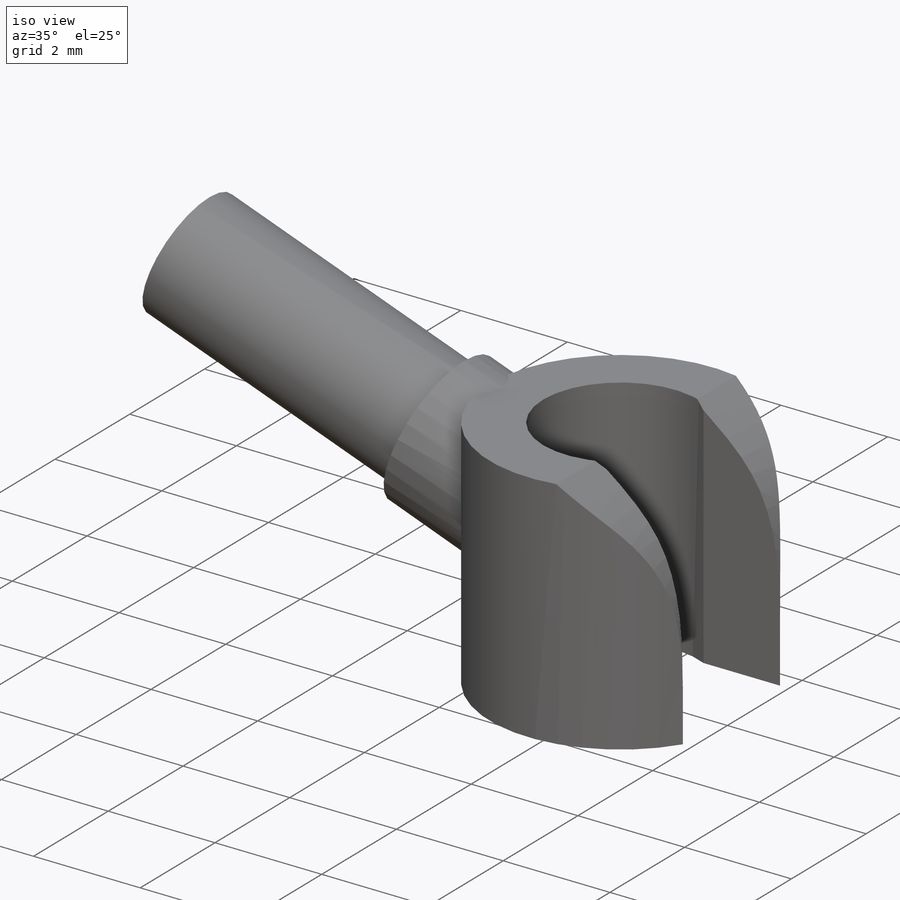
[diagram: iso view]
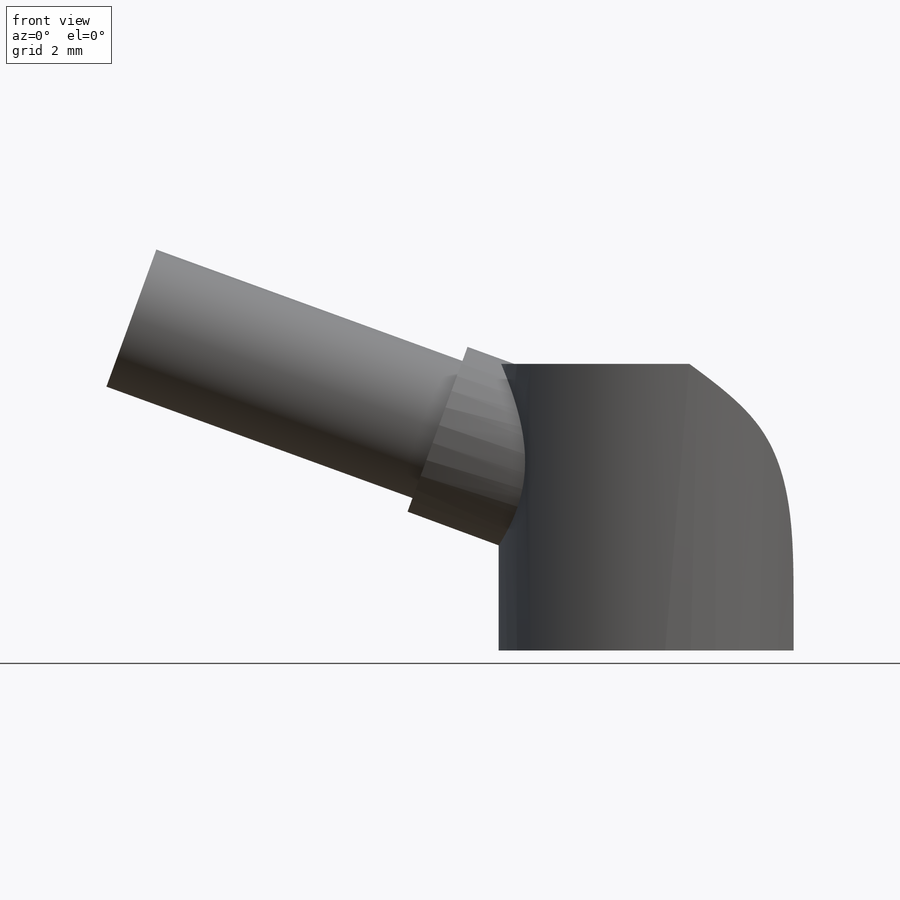
[diagram: front view]
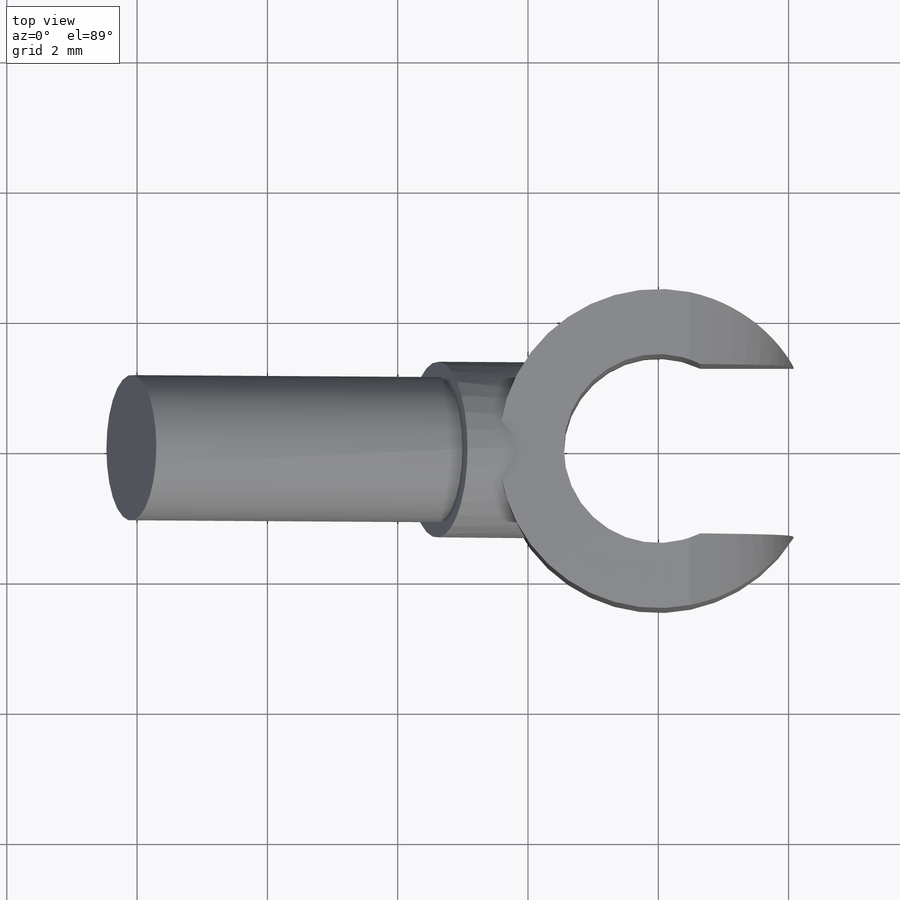
[diagram: top view]
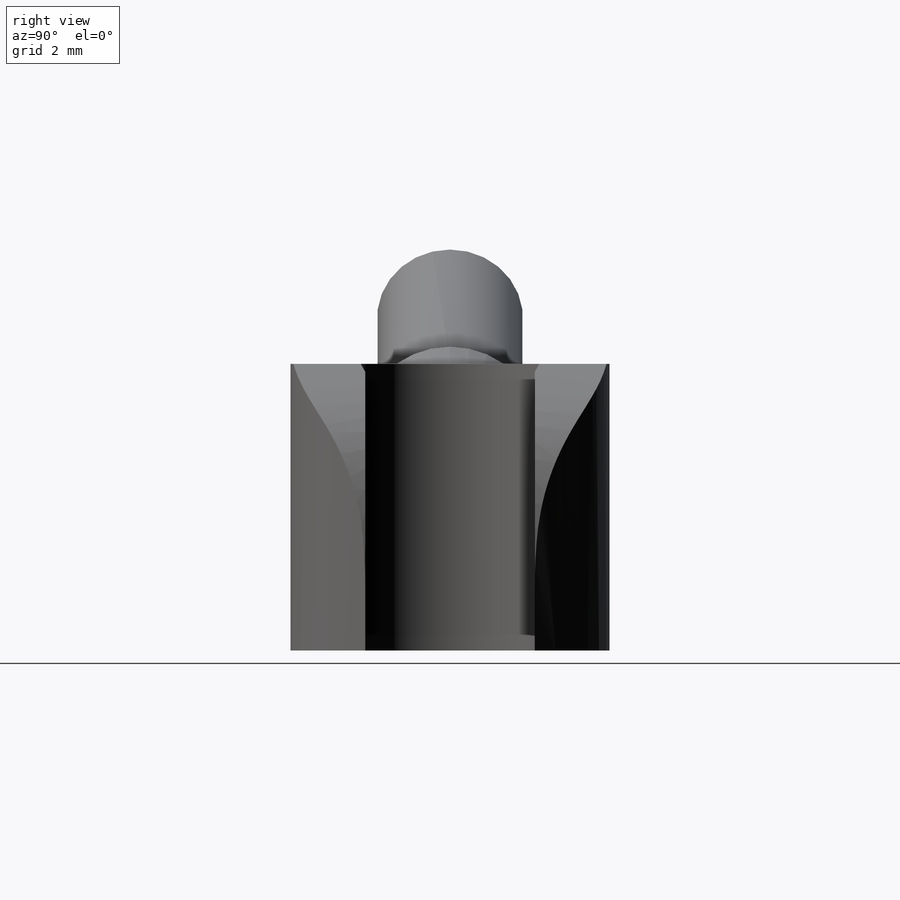
[diagram: right view]
SOLIDWORKS PART (.sldprt)
format: sldprt  version: not decoded by parser v0  size: 221,184 bytes
history: native  units: mm
features: sketch x5, extrude x3, plane x2, material x1, cut_extrude x1 (+14 scaffold rows collapsed)
feature tree (26):
  scaffold x14  (default folders/planes/origin — collapsed)
  material  "Yellow Plastic"
  sketch  "Sketch1"  dims[D1=4.9mm D2=1.0mm D3=2.6mm]
  extrude  "Extrude1"  Depth=4.4mm
  plane  "Plane1"  Offset=2.45mm
  sketch  "Sketch11"  dims[D1=0.5mm D2=1.6mm D3=1.0mm D4=0.7mm]
  cut_extrude  "Extrude5"  [1 undecoded]
  sketch  "Sketch14"  dims[D1=2.7mm]
  plane  "Plane3"
  sketch  "Sketch15"  dims[D1=2.7mm]
  extrude  "Extrude6"  Depth=1mm
  sketch  "Sketch16"  dims[D1=2.24mm]
  extrude  "Extrude7"  Depth=5mm
decode coverage: 8 of 9 modeling features carry decoded parameters
note: 1 parameter value undecoded
note: suppression state not decoded; provenance and decode notes live in map.json
